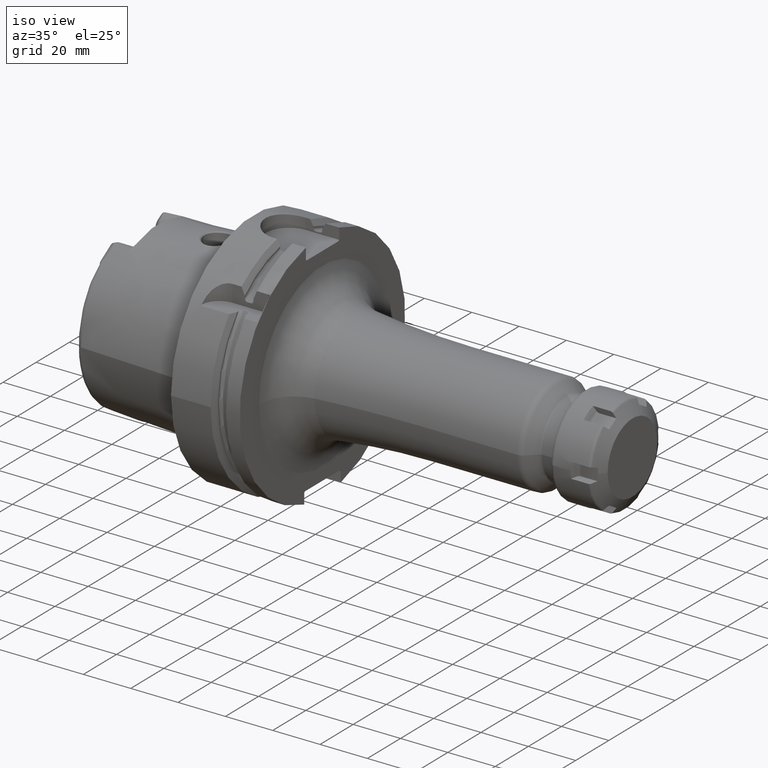
[diagram: clean part render]
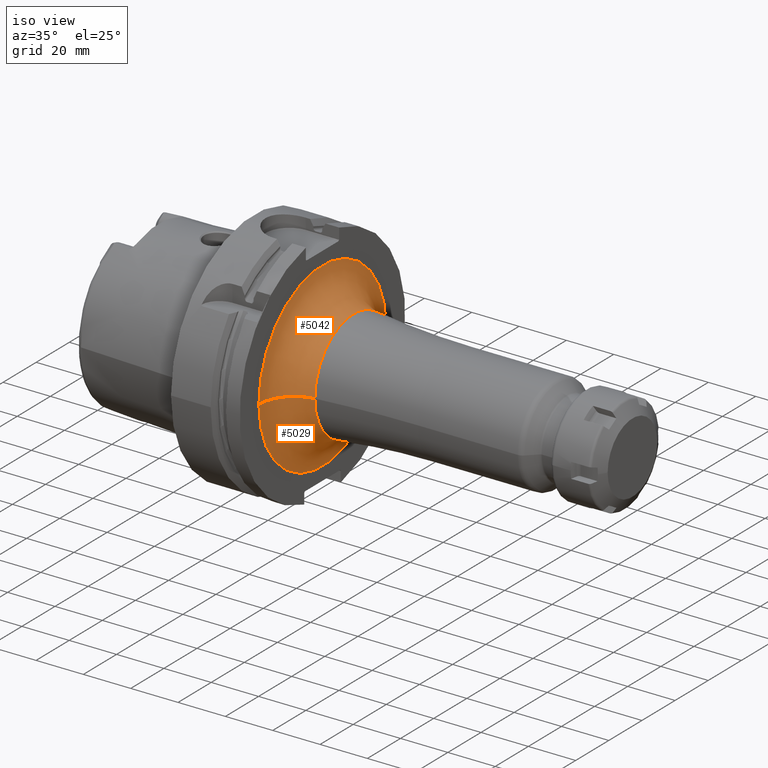
[diagram: same view with one multi-face feature highlighted, each face labeled with its STEP entity id]
A machine part, iso view. The highlighted faces form ONE feature: a constant-radius fillet chain: 2 tangent blend faces with common blend radius 15 mm. The faces share edges in the B-rep.
Their STEP definitions:
[1] entity #5029 (Torus):
#1226=CARTESIAN_POINT('',(2.9E1,0.E0,0.E0));
#1227=DIRECTION('',(1.E0,0.E0,0.E0));
#1228=DIRECTION('',(0.E0,-1.E0,-1.014675204489E-14));
#1229=AXIS2_PLACEMENT_3D('',#1226,#1227,#1228);
#1782=CARTESIAN_POINT('',(4.4E1,-3.839663260875E1,4.992395385983E-13));
#1783=DIRECTION('',(0.E0,-1.300131877158E-14,-1.E0));
#1784=DIRECTION('',(-1.E0,0.E0,0.E0));
#1785=AXIS2_PLACEMENT_3D('',#1782,#1783,#1784);
#1787=CARTESIAN_POINT('',(4.4E1,3.839663260875E1,-5.038192085749E-13));
#1788=DIRECTION('',(0.E0,1.312101469142E-14,1.E0));
#1789=DIRECTION('',(-1.E0,0.E0,0.E0));
#1790=AXIS2_PLACEMENT_3D('',#1787,#1788,#1789);
#1797=CARTESIAN_POINT('',(4.220895522388E1,0.E0,0.E0));
#1798=DIRECTION('',(1.E0,0.E0,0.E0));
#1799=DIRECTION('',(0.E0,-1.E0,0.E0));
#1800=AXIS2_PLACEMENT_3D('',#1797,#1798,#1799);
#3244=CARTESIAN_POINT('',(2.9E1,-3.839663260875E1,-3.896011104396E-13));
#3245=CARTESIAN_POINT('',(2.9E1,3.839663260875E1,3.848988791173E-13));
#3246=VERTEX_POINT('',#3244);
#3247=VERTEX_POINT('',#3245);
#3248=CARTESIAN_POINT('',(4.220895522388E1,-2.350394451660E1,0.E0));
#3249=CARTESIAN_POINT('',(4.220895522388E1,2.350394451660E1,0.E0));
#3250=VERTEX_POINT('',#3248);
#3251=VERTEX_POINT('',#3249);
#5015=CARTESIAN_POINT('',(4.4E1,0.E0,0.E0));
#5016=DIRECTION('',(1.E0,0.E0,0.E0));
#5017=DIRECTION('',(0.E0,-9.999939424486E-1,3.480670348097E-3));
#5018=AXIS2_PLACEMENT_3D('',#5015,#5016,#5017);
#5019=TOROIDAL_SURFACE('',#5018,3.839663260875E1,1.5E1);
#5020=ORIENTED_EDGE('',*,*,#4465,.F.);
#5022=ORIENTED_EDGE('',*,*,#5021,.T.);
#5024=ORIENTED_EDGE('',*,*,#5023,.T.);
#5026=ORIENTED_EDGE('',*,*,#5025,.F.);
#5027=EDGE_LOOP('',(#5020,#5022,#5024,#5026));
#5028=FACE_OUTER_BOUND('',#5027,.F.);
#5029=ADVANCED_FACE('',(#5028),#5019,.F.);
#1230=CIRCLE('',#1229,3.839663260875E1);
#1786=CIRCLE('',#1785,1.5E1);
#1791=CIRCLE('',#1790,1.5E1);
#1801=CIRCLE('',#1800,2.350394451660E1);
#4465=EDGE_CURVE('',#3246,#3247,#1230,.T.);
#5021=EDGE_CURVE('',#3246,#3250,#1786,.T.);
#5023=EDGE_CURVE('',#3250,#3251,#1801,.T.);
#5025=EDGE_CURVE('',#3247,#3251,#1791,.T.);
[2] entity #5042 (Torus):
#1231=CARTESIAN_POINT('',(2.9E1,0.E0,0.E0));
#1232=DIRECTION('',(1.E0,0.E0,0.E0));
#1233=DIRECTION('',(0.E0,1.E0,1.002428736497E-14));
#1234=AXIS2_PLACEMENT_3D('',#1231,#1232,#1233);
#1782=CARTESIAN_POINT('',(4.4E1,-3.839663260875E1,4.992395385983E-13));
#1783=DIRECTION('',(0.E0,-1.300131877158E-14,-1.E0));
#1784=DIRECTION('',(-1.E0,0.E0,0.E0));
#1785=AXIS2_PLACEMENT_3D('',#1782,#1783,#1784);
#1787=CARTESIAN_POINT('',(4.4E1,3.839663260875E1,-5.038192085749E-13));
#1788=DIRECTION('',(0.E0,1.312101469142E-14,1.E0));
#1789=DIRECTION('',(-1.E0,0.E0,0.E0));
#1790=AXIS2_PLACEMENT_3D('',#1787,#1788,#1789);
#1792=CARTESIAN_POINT('',(4.220895522388E1,0.E0,0.E0));
#1793=DIRECTION('',(1.E0,0.E0,0.E0));
#1794=DIRECTION('',(0.E0,1.E0,0.E0));
#1795=AXIS2_PLACEMENT_3D('',#1792,#1793,#1794);
#3244=CARTESIAN_POINT('',(2.9E1,-3.839663260875E1,-3.896011104396E-13));
#3245=CARTESIAN_POINT('',(2.9E1,3.839663260875E1,3.848988791173E-13));
#3246=VERTEX_POINT('',#3244);
#3247=VERTEX_POINT('',#3245);
#3248=CARTESIAN_POINT('',(4.220895522388E1,-2.350394451660E1,0.E0));
#3249=CARTESIAN_POINT('',(4.220895522388E1,2.350394451660E1,0.E0));
#3250=VERTEX_POINT('',#3248);
#3251=VERTEX_POINT('',#3249);
#5030=CARTESIAN_POINT('',(4.4E1,0.E0,0.E0));
#5031=DIRECTION('',(1.E0,0.E0,0.E0));
#5032=DIRECTION('',(0.E0,9.999939424486E-1,-3.480670348097E-3));
#5033=AXIS2_PLACEMENT_3D('',#5030,#5031,#5032);
#5034=TOROIDAL_SURFACE('',#5033,3.839663260875E1,1.5E1);
#5035=ORIENTED_EDGE('',*,*,#4467,.F.);
#5036=ORIENTED_EDGE('',*,*,#5025,.T.);
#5038=ORIENTED_EDGE('',*,*,#5037,.T.);
#5039=ORIENTED_EDGE('',*,*,#5021,.F.);
#5040=EDGE_LOOP('',(#5035,#5036,#5038,#5039));
#5041=FACE_OUTER_BOUND('',#5040,.F.);
#5042=ADVANCED_FACE('',(#5041),#5034,.F.);
#1235=CIRCLE('',#1234,3.839663260875E1);
#1786=CIRCLE('',#1785,1.5E1);
#1791=CIRCLE('',#1790,1.5E1);
#1796=CIRCLE('',#1795,2.350394451660E1);
#4467=EDGE_CURVE('',#3247,#3246,#1235,.T.);
#5021=EDGE_CURVE('',#3246,#3250,#1786,.T.);
#5025=EDGE_CURVE('',#3247,#3251,#1791,.T.);
#5037=EDGE_CURVE('',#3251,#3250,#1796,.T.);